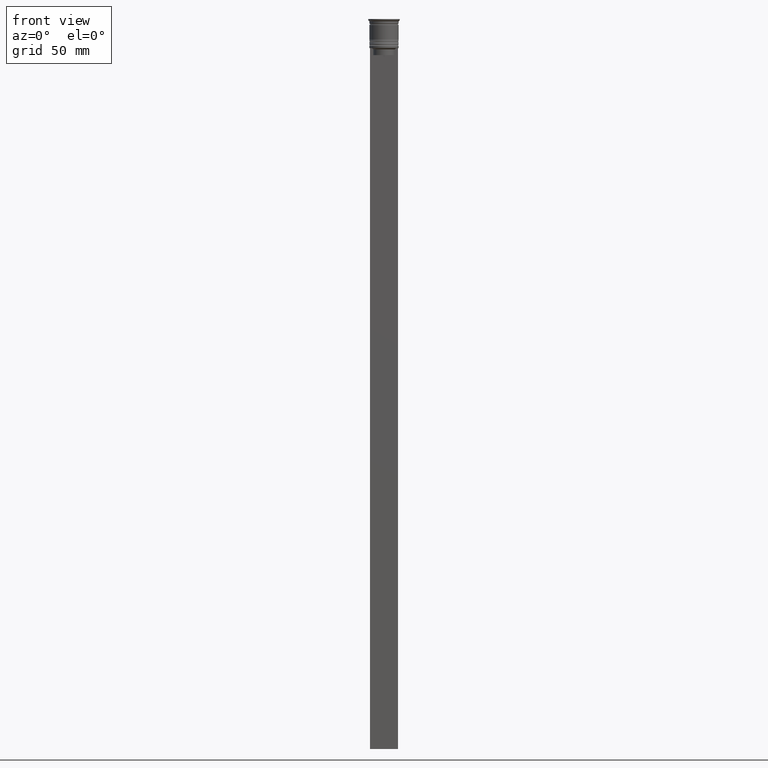
[diagram: clean part render]
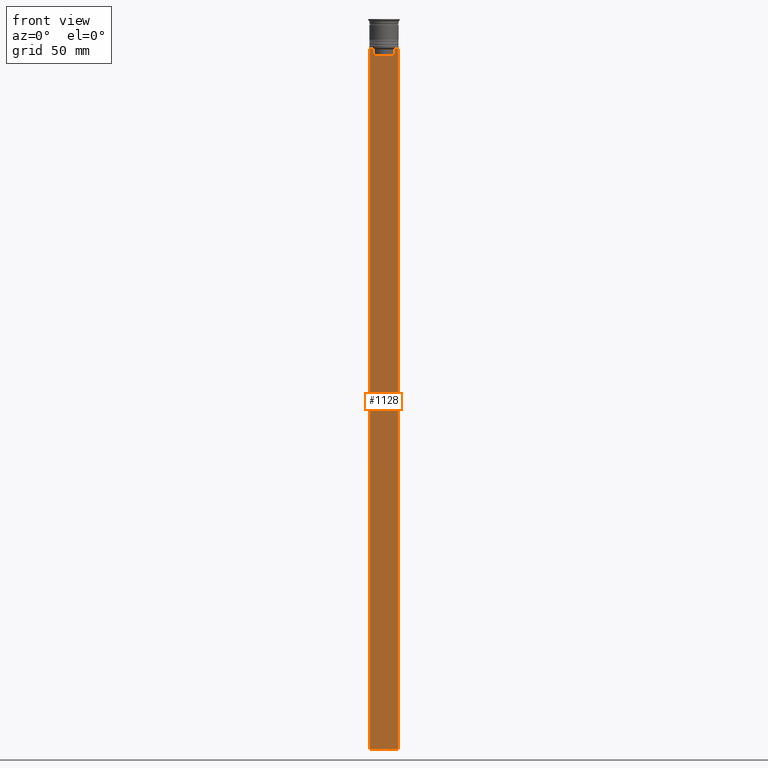
[diagram: same view with one face highlighted and labeled with its STEP entity id]
A machine part, front view. The second image highlights one B-rep face of the part: STEP entity #1128.
In plain terms, the highlighted planar face has unit normal (0, -1, -0).
Its self-contained STEP definition (entity closure, byte-faithful):
#66 = CARTESIAN_POINT ( 'NONE',  ( 6.000000000000016875, -0.5000000000000017764, -12.50000000000000000 ) ) ;
#79 = CARTESIAN_POINT ( 'NONE',  ( -5.125670687822231564, -0.5000000000000017764, -12.50000000000000000 ) ) ;
#99 = DIRECTION ( 'NONE',  ( 0.000000000000000000, 0.000000000000000000, -1.000000000000000000 ) ) ;
#102 = CARTESIAN_POINT ( 'NONE',  ( 0.000000000000000000, -0.5000000000000022204, -15.50000000000000000 ) ) ;
#157 = CARTESIAN_POINT ( 'NONE',  ( 5.125670687822231564, -0.5000000000000017764, -12.50000000000000000 ) ) ;
#212 = VERTEX_POINT ( 'NONE', #1364 ) ;
#220 = ORIENTED_EDGE ( 'NONE', *, *, #361, .F. ) ;
#254 = VERTEX_POINT ( 'NONE', #910 ) ;
#318 = DIRECTION ( 'NONE',  ( 1.000000000000000000, 0.000000000000000000, 0.000000000000000000 ) ) ;
#326 = VERTEX_POINT ( 'NONE', #1609 ) ;
#330 = CARTESIAN_POINT ( 'NONE',  ( 6.000000000000016875, -0.5000000000000017764, -0.4584054212077061097 ) ) ;
#337 = ORIENTED_EDGE ( 'NONE', *, *, #974, .T. ) ;
#338 = CARTESIAN_POINT ( 'NONE',  ( 4.623040125285526436, -0.5000000000000017764, -13.00000000000000178 ) ) ;
#359 = VERTEX_POINT ( 'NONE', #2193 ) ;
#361 = EDGE_CURVE ( 'NONE', #2128, #991, #899, .T. ) ;
#366 = B_SPLINE_CURVE_WITH_KNOTS ( 'NONE', 3,
 ( #79, #973, #437, #651 ),
 .UNSPECIFIED., .F., .F.,
 ( 4, 4 ),
 ( 0.008759809102772709091, 0.009468778395565353653 ),
 .UNSPECIFIED. ) ;
#370 = CARTESIAN_POINT ( 'NONE',  ( -4.623040125285526436, -0.5000000000000017764, 0.000000000000000000 ) ) ;
#380 = EDGE_CURVE ( 'NONE', #2246, #212, #1375, .T. ) ;
#437 = CARTESIAN_POINT ( 'NONE',  ( -4.790630915080664742, -0.5000000000000017764, -12.83338087185995491 ) ) ;
#462 = CARTESIAN_POINT ( 'NONE',  ( 4.623040125285526436, -0.5000000000000017764, 0.000000000000000000 ) ) ;
#511 = LINE ( 'NONE', #102, #742 ) ;
#524 = LINE ( 'NONE', #837, #1036 ) ;
#529 = ORIENTED_EDGE ( 'NONE', *, *, #2009, .F. ) ;
#627 = VECTOR ( 'NONE', #1103, 1000.000000000000000 ) ;
#632 = ORIENTED_EDGE ( 'NONE', *, *, #2081, .F. ) ;
#651 = CARTESIAN_POINT ( 'NONE',  ( -4.623040125285526436, -0.5000000000000017764, -13.00000000000000178 ) ) ;
#693 = LINE ( 'NONE', #1941, #1946 ) ;
#742 = VECTOR ( 'NONE', #318, 1000.000000000000000 ) ;
#757 = CARTESIAN_POINT ( 'NONE',  ( -5.999999999999983125, -0.5000000000000017764, -12.50000000000000000 ) ) ;
#762 = ORIENTED_EDGE ( 'NONE', *, *, #1092, .F. ) ;
#837 = CARTESIAN_POINT ( 'NONE',  ( 6.000000000000016875, -0.5000000000000017764, -312.5000000000000000 ) ) ;
#851 = ORIENTED_EDGE ( 'NONE', *, *, #2267, .F. ) ;
#899 = LINE ( 'NONE', #1074, #2226 ) ;
#903 = DIRECTION ( 'NONE',  ( 0.000000000000000000, 0.000000000000000000, -1.000000000000000000 ) ) ;
#910 = CARTESIAN_POINT ( 'NONE',  ( -4.623040125285526436, -0.5000000000000017764, -13.00000000000000178 ) ) ;
#923 = VECTOR ( 'NONE', #1117, 1000.000000000000000 ) ;
#947 = ORIENTED_EDGE ( 'NONE', *, *, #1787, .F. ) ;
#973 = CARTESIAN_POINT ( 'NONE',  ( -4.958169823806760412, -0.5000000000000017764, -12.66670956677067927 ) ) ;
#974 = EDGE_CURVE ( 'NONE', #2128, #1652, #1515, .T. ) ;
#991 = VERTEX_POINT ( 'NONE', #1884 ) ;
#1000 = VECTOR ( 'NONE', #2057, 1000.000000000000000 ) ;
#1015 = CARTESIAN_POINT ( 'NONE',  ( -5.999999999999983125, -0.5000000000000017764, -0.4584054212077061097 ) ) ;
#1036 = VECTOR ( 'NONE', #1400, 1000.000000000000000 ) ;
#1039 = DIRECTION ( 'NONE',  ( 0.000000000000000000, 0.000000000000000000, -1.000000000000000000 ) ) ;
#1051 = CARTESIAN_POINT ( 'NONE',  ( 4.790630799407577634, -0.5000000000000017764, -12.83338098686238915 ) ) ;
#1074 = CARTESIAN_POINT ( 'NONE',  ( 6.000000000000016875, -0.5000000000000017764, -12.50000000000000000 ) ) ;
#1092 = EDGE_CURVE ( 'NONE', #2200, #1484, #693, .T. ) ;
#1103 = DIRECTION ( 'NONE',  ( 0.000000000000000000, 0.000000000000000000, -1.000000000000000000 ) ) ;
#1117 = DIRECTION ( 'NONE',  ( 1.000000000000000000, 0.000000000000000000, 0.000000000000000000 ) ) ;
#1128 = ADVANCED_FACE ( 'NONE', ( #1983 ), #1264, .T. ) ;
#1246 = LINE ( 'NONE', #1792, #923 ) ;
#1264 = PLANE ( 'NONE',  #2285 ) ;
#1278 = ORIENTED_EDGE ( 'NONE', *, *, #380, .F. ) ;
#1364 = CARTESIAN_POINT ( 'NONE',  ( 5.125670687822231564, -0.5000000000000017764, -12.50000000000000000 ) ) ;
#1375 = B_SPLINE_CURVE_WITH_KNOTS ( 'NONE', 3,
 ( #338, #1051, #1776, #157 ),
 .UNSPECIFIED., .F., .F.,
 ( 4, 4 ),
 ( 0.02203698174624552780, 0.02275222543365896383 ),
 .UNSPECIFIED. ) ;
#1398 = DIRECTION ( 'NONE',  ( 0.000000000000000000, -1.000000000000000000, -0.000000000000000000 ) ) ;
#1400 = DIRECTION ( 'NONE',  ( -1.000000000000000000, 0.000000000000000000, 0.000000000000000000 ) ) ;
#1484 = VERTEX_POINT ( 'NONE', #1940 ) ;
#1515 = LINE ( 'NONE', #1015, #2098 ) ;
#1542 = CARTESIAN_POINT ( 'NONE',  ( 4.623040125285526436, -0.5000000000000017764, -13.00000000000000178 ) ) ;
#1609 = CARTESIAN_POINT ( 'NONE',  ( -4.623040125285526436, -0.5000000000000022204, -15.50000000000000000 ) ) ;
#1619 = DIRECTION ( 'NONE',  ( 1.000000000000000000, 0.000000000000000000, 0.000000000000000000 ) ) ;
#1624 = LINE ( 'NONE', #370, #627 ) ;
#1652 = VERTEX_POINT ( 'NONE', #1744 ) ;
#1744 = CARTESIAN_POINT ( 'NONE',  ( -5.999999999999983125, -0.5000000000000017764, -312.5000000000000000 ) ) ;
#1759 = EDGE_CURVE ( 'NONE', #991, #254, #366, .T. ) ;
#1776 = CARTESIAN_POINT ( 'NONE',  ( 4.958169719475987947, -0.5000000000000017764, -12.66670967060858111 ) ) ;
#1787 = EDGE_CURVE ( 'NONE', #359, #2246, #2082, .T. ) ;
#1792 = CARTESIAN_POINT ( 'NONE',  ( 6.000000000000016875, -0.5000000000000017764, -12.50000000000000000 ) ) ;
#1884 = CARTESIAN_POINT ( 'NONE',  ( -5.125670687822231564, -0.5000000000000017764, -12.50000000000000000 ) ) ;
#1939 = ORIENTED_EDGE ( 'NONE', *, *, #1759, .F. ) ;
#1940 = CARTESIAN_POINT ( 'NONE',  ( 6.000000000000016875, -0.5000000000000017764, -312.5000000000000000 ) ) ;
#1941 = CARTESIAN_POINT ( 'NONE',  ( 6.000000000000016875, -0.5000000000000017764, -0.4584054212077061097 ) ) ;
#1946 = VECTOR ( 'NONE', #1039, 1000.000000000000000 ) ;
#1983 = FACE_OUTER_BOUND ( 'NONE', #2130, .T. ) ;
#2009 = EDGE_CURVE ( 'NONE', #212, #2200, #1246, .T. ) ;
#2057 = DIRECTION ( 'NONE',  ( -0.000000000000000000, -0.000000000000000000, 1.000000000000000000 ) ) ;
#2081 = EDGE_CURVE ( 'NONE', #254, #326, #1624, .T. ) ;
#2082 = LINE ( 'NONE', #462, #1000 ) ;
#2098 = VECTOR ( 'NONE', #99, 1000.000000000000000 ) ;
#2128 = VERTEX_POINT ( 'NONE', #757 ) ;
#2130 = EDGE_LOOP ( 'NONE', ( #1939, #220, #337, #2300, #762, #529, #1278, #947, #851, #632 ) ) ;
#2193 = CARTESIAN_POINT ( 'NONE',  ( 4.623040125285526436, -0.5000000000000022204, -15.50000000000000000 ) ) ;
#2200 = VERTEX_POINT ( 'NONE', #66 ) ;
#2226 = VECTOR ( 'NONE', #1619, 1000.000000000000000 ) ;
#2246 = VERTEX_POINT ( 'NONE', #1542 ) ;
#2267 = EDGE_CURVE ( 'NONE', #326, #359, #511, .T. ) ;
#2285 = AXIS2_PLACEMENT_3D ( 'NONE', #330, #1398, #903 ) ;
#2300 = ORIENTED_EDGE ( 'NONE', *, *, #2323, .F. ) ;
#2323 = EDGE_CURVE ( 'NONE', #1484, #1652, #524, .T. ) ;